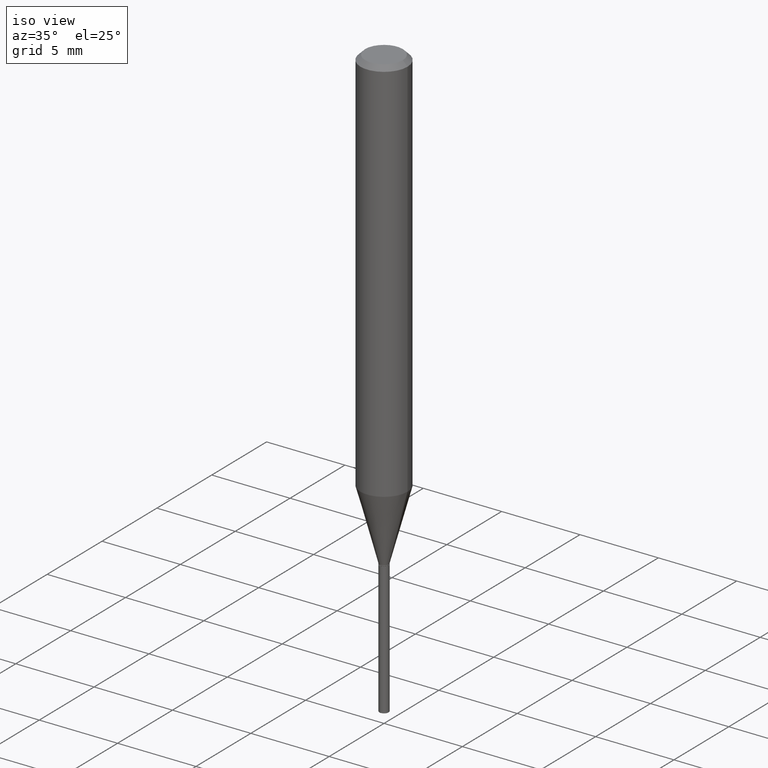
[diagram: clean part render]
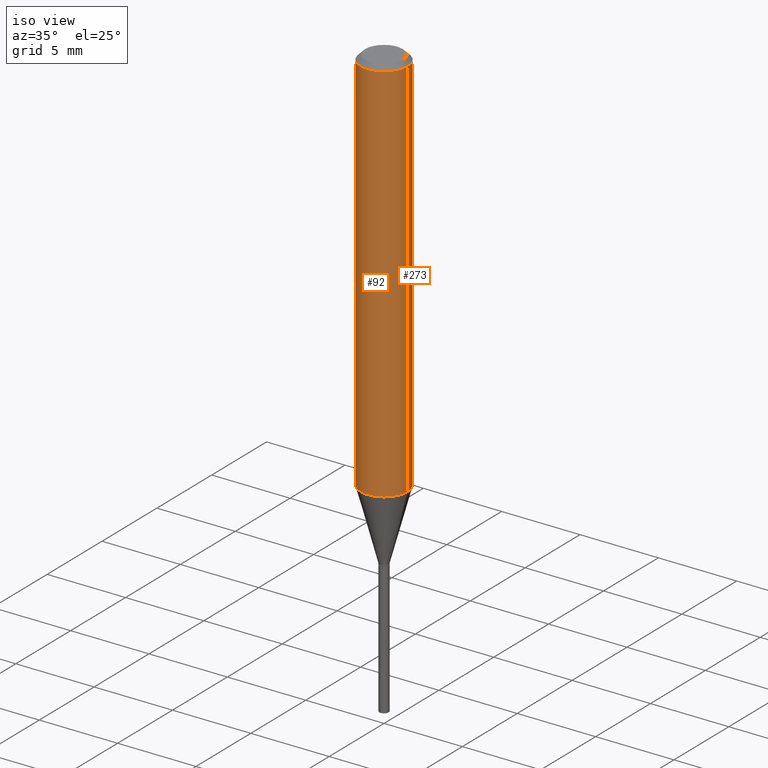
[diagram: same view with one multi-face feature highlighted, each face labeled with its STEP entity id]
A machine part, iso view. The highlighted faces form ONE feature: a constant-radius fillet chain: 2 tangent blend faces with common blend radius 1.4999 mm. The faces share edges in the B-rep.
Their STEP definitions:
[1] entity #273 (Cylinder):
#2 = CYLINDRICAL_SURFACE ( 'NONE', #40, 0.05905000000000006077 ) ;
#4 = CARTESIAN_POINT ( 'NONE',  ( -0.05905000000000011628, -2.991302175709703364E-15, -0.9769141891808567069 ) ) ;
#25 = LINE ( 'NONE', #480, #398 ) ;
#40 = AXIS2_PLACEMENT_3D ( 'NONE', #159, #308, #121 ) ;
#54 = DIRECTION ( 'NONE',  ( 1.000000000000000000, -6.982962677686266711E-15, 0.000000000000000000 ) ) ;
#69 = DIRECTION ( 'NONE',  ( -2.445468806185136597E-29, 3.491481338843145583E-15, 1.000000000000000000 ) ) ;
#77 = EDGE_CURVE ( 'NONE', #167, #173, #101, .T. ) ;
#80 = CIRCLE ( 'NONE', #268, 0.05904999999999999832 ) ;
#89 = EDGE_CURVE ( 'NONE', #327, #472, #25, .T. ) ;
#101 = LINE ( 'NONE', #248, #267 ) ;
#110 = CARTESIAN_POINT ( 'NONE',  ( 0.05904999999999999832, -4.535783407291118600E-16, -0.01181000000000007218 ) ) ;
#120 = ORIENTED_EDGE ( 'NONE', *, *, #466, .F. ) ;
#121 = DIRECTION ( 'NONE',  ( 1.000000000000000000, -6.982962677686266711E-15, 4.876176775795935793E-29 ) ) ;
#159 = CARTESIAN_POINT ( 'NONE',  ( 0.000000000000000000, 0.000000000000000000, 0.000000000000000000 ) ) ;
#167 = VERTEX_POINT ( 'NONE', #4 ) ;
#173 = VERTEX_POINT ( 'NONE', #232 ) ;
#205 = CARTESIAN_POINT ( 'NONE',  ( 2.389013175961430346E-29, -3.410877661176043645E-15, -0.9769141891808567069 ) ) ;
#226 = CIRCLE ( 'NONE', #473, 0.05905000000000011628 ) ;
#232 = CARTESIAN_POINT ( 'NONE',  ( -0.05904999999999999832, -1.306480542427550405E-15, -0.01181000000000007218 ) ) ;
#248 = CARTESIAN_POINT ( 'NONE',  ( -0.05905000000000006077, 4.195754854663395916E-16, -2.904631170795524694E-30 ) ) ;
#267 = VECTOR ( 'NONE', #402, 39.37007874015748143 ) ;
#268 = AXIS2_PLACEMENT_3D ( 'NONE', #412, #69, #485 ) ;
#273 = ADVANCED_FACE ( 'NONE', ( #384 ), #2, .T. ) ;
#308 = DIRECTION ( 'NONE',  ( -2.445468806185136597E-29, 3.491481338843145583E-15, 1.000000000000000000 ) ) ;
#321 = ORIENTED_EDGE ( 'NONE', *, *, #77, .T. ) ;
#327 = VERTEX_POINT ( 'NONE', #391 ) ;
#341 = EDGE_CURVE ( 'NONE', #327, #167, #226, .T. ) ;
#384 = FACE_OUTER_BOUND ( 'NONE', #441, .T. ) ;
#391 = CARTESIAN_POINT ( 'NONE',  ( 0.05905000000000011628, -3.823221607293418566E-15, -0.9769141891808567069 ) ) ;
#394 = ORIENTED_EDGE ( 'NONE', *, *, #341, .T. ) ;
#398 = VECTOR ( 'NONE', #445, 39.37007874015748143 ) ;
#402 = DIRECTION ( 'NONE',  ( -2.445468806185136877E-29, 3.491481338843145188E-15, 1.000000000000000000 ) ) ;
#412 = CARTESIAN_POINT ( 'NONE',  ( 2.888098660104664204E-31, -4.123439461173780263E-17, -0.01181000000000007218 ) ) ;
#437 = ORIENTED_EDGE ( 'NONE', *, *, #89, .F. ) ;
#441 = EDGE_LOOP ( 'NONE', ( #394, #321, #120, #437 ) ) ;
#445 = DIRECTION ( 'NONE',  ( -2.445468806185136877E-29, 3.491481338843145188E-15, 1.000000000000000000 ) ) ;
#463 = DIRECTION ( 'NONE',  ( -2.445468806185136597E-29, 3.491481338843145583E-15, 1.000000000000000000 ) ) ;
#466 = EDGE_CURVE ( 'NONE', #472, #173, #80, .T. ) ;
#472 = VERTEX_POINT ( 'NONE', #110 ) ;
#473 = AXIS2_PLACEMENT_3D ( 'NONE', #205, #463, #54 ) ;
#480 = CARTESIAN_POINT ( 'NONE',  ( 0.05905000000000006077, -4.123439461173744764E-16, 2.879382386107503023E-30 ) ) ;
#485 = DIRECTION ( 'NONE',  ( 1.000000000000000000, -6.982962677686266711E-15, 0.000000000000000000 ) ) ;
[2] entity #92 (Cylinder):
#4 = CARTESIAN_POINT ( 'NONE',  ( -0.05905000000000011628, -2.991302175709703364E-15, -0.9769141891808567069 ) ) ;
#5 = CIRCLE ( 'NONE', #446, 0.05905000000000011628 ) ;
#7 = CARTESIAN_POINT ( 'NONE',  ( 2.888098660104664204E-31, -4.123439461173780263E-17, -0.01181000000000007218 ) ) ;
#8 = ORIENTED_EDGE ( 'NONE', *, *, #89, .T. ) ;
#25 = LINE ( 'NONE', #480, #398 ) ;
#72 = DIRECTION ( 'NONE',  ( -2.445468806185136597E-29, 3.491481338843145583E-15, 1.000000000000000000 ) ) ;
#77 = EDGE_CURVE ( 'NONE', #167, #173, #101, .T. ) ;
#78 = DIRECTION ( 'NONE',  ( -2.445468806185136597E-29, 3.491481338843145583E-15, 1.000000000000000000 ) ) ;
#89 = EDGE_CURVE ( 'NONE', #327, #472, #25, .T. ) ;
#92 = ADVANCED_FACE ( 'NONE', ( #423 ), #459, .T. ) ;
#101 = LINE ( 'NONE', #248, #267 ) ;
#102 = DIRECTION ( 'NONE',  ( -2.445468806185136597E-29, 3.491481338843145583E-15, 1.000000000000000000 ) ) ;
#106 = ORIENTED_EDGE ( 'NONE', *, *, #377, .F. ) ;
#110 = CARTESIAN_POINT ( 'NONE',  ( 0.05904999999999999832, -4.535783407291118600E-16, -0.01181000000000007218 ) ) ;
#136 = ORIENTED_EDGE ( 'NONE', *, *, #269, .T. ) ;
#167 = VERTEX_POINT ( 'NONE', #4 ) ;
#173 = VERTEX_POINT ( 'NONE', #232 ) ;
#196 = DIRECTION ( 'NONE',  ( 1.000000000000000000, -6.982962677686266711E-15, 0.000000000000000000 ) ) ;
#201 = AXIS2_PLACEMENT_3D ( 'NONE', #299, #72, #345 ) ;
#232 = CARTESIAN_POINT ( 'NONE',  ( -0.05904999999999999832, -1.306480542427550405E-15, -0.01181000000000007218 ) ) ;
#233 = CARTESIAN_POINT ( 'NONE',  ( 2.389013175961430346E-29, -3.410877661176043645E-15, -0.9769141891808567069 ) ) ;
#248 = CARTESIAN_POINT ( 'NONE',  ( -0.05905000000000006077, 4.195754854663395916E-16, -2.904631170795524694E-30 ) ) ;
#267 = VECTOR ( 'NONE', #402, 39.37007874015748143 ) ;
#269 = EDGE_CURVE ( 'NONE', #167, #327, #5, .T. ) ;
#299 = CARTESIAN_POINT ( 'NONE',  ( 0.000000000000000000, 0.000000000000000000, 0.000000000000000000 ) ) ;
#320 = EDGE_LOOP ( 'NONE', ( #357, #136, #8, #106 ) ) ;
#327 = VERTEX_POINT ( 'NONE', #391 ) ;
#345 = DIRECTION ( 'NONE',  ( 1.000000000000000000, -6.982962677686266711E-15, 4.876176775795935793E-29 ) ) ;
#357 = ORIENTED_EDGE ( 'NONE', *, *, #77, .F. ) ;
#366 = DIRECTION ( 'NONE',  ( 1.000000000000000000, -6.982962677686266711E-15, 0.000000000000000000 ) ) ;
#377 = EDGE_CURVE ( 'NONE', #173, #472, #390, .T. ) ;
#390 = CIRCLE ( 'NONE', #454, 0.05904999999999999832 ) ;
#391 = CARTESIAN_POINT ( 'NONE',  ( 0.05905000000000011628, -3.823221607293418566E-15, -0.9769141891808567069 ) ) ;
#398 = VECTOR ( 'NONE', #445, 39.37007874015748143 ) ;
#402 = DIRECTION ( 'NONE',  ( -2.445468806185136877E-29, 3.491481338843145188E-15, 1.000000000000000000 ) ) ;
#423 = FACE_OUTER_BOUND ( 'NONE', #320, .T. ) ;
#445 = DIRECTION ( 'NONE',  ( -2.445468806185136877E-29, 3.491481338843145188E-15, 1.000000000000000000 ) ) ;
#446 = AXIS2_PLACEMENT_3D ( 'NONE', #233, #78, #196 ) ;
#454 = AXIS2_PLACEMENT_3D ( 'NONE', #7, #102, #366 ) ;
#459 = CYLINDRICAL_SURFACE ( 'NONE', #201, 0.05905000000000006077 ) ;
#472 = VERTEX_POINT ( 'NONE', #110 ) ;
#480 = CARTESIAN_POINT ( 'NONE',  ( 0.05905000000000006077, -4.123439461173744764E-16, 2.879382386107503023E-30 ) ) ;